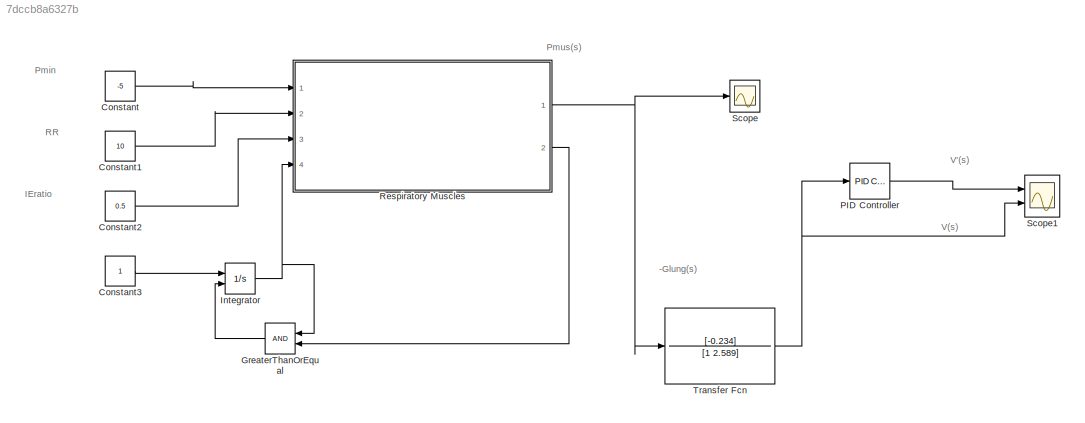
MODEL slx_7dccb8a6327b
KIND model
CONFIG AbsTol = auto
CONFIG EnableMultiTasking = off
CONFIG FixedStep = auto
CONFIG MaxStep = auto
CONFIG MinStep = auto
CONFIG RelTol = 1e-3
CONFIG SampleTimeConstraint = Unconstrained
CONFIG Solver = VariableStepAuto
CONFIG SolverName = VariableStepAuto
CONFIG StartTime = 0.0
CONFIG StopTime = 60.0
BLOCK [Constant] Constant
  Value = -5
BLOCK [Constant] Constant1
  Value = 10
BLOCK [Constant] Constant2
  Value = 0.5
BLOCK [Constant] Constant3
BLOCK [RelationalOperator] GreaterThanOrEqual
  InputSameDT = off
  OutDataTypeStr = boolean
  Ports = [2, 1]
  RndMeth = Simplest
BLOCK [Integrator] Integrator
  ExternalReset = rising
  Ports = [2, 1]
BLOCK [Reference] PID Controller  REF=simulink/Continuous/PID Controller
  Ports = [1, 1]
  SourceBlock = simulink/Continuous/PID Controller
  SourceProductBaseCode = SL
  SourceType = PID 1dof
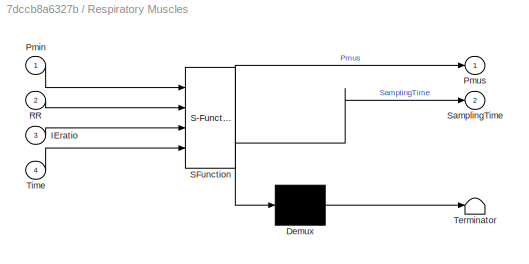
BLOCK [SubSystem] Respiratory Muscles
  ErrorFcn = Stateflow.Translate.translate
  PermitHierarchicalResolution = ExplicitOnly
  Ports = [4, 2]
  RequestExecContextInheritance = off
  SFBlockType = MATLAB Function
  TreatAsAtomicUnit = on
BLOCK [Demux] Respiratory Muscles/ Demux 
  DisplayOption = bar
  Outputs = 1
  Ports = [1, 1]
BLOCK [S-Function] Respiratory Muscles/ SFunction 
  EnableBusSupport = on
  FunctionName = sf_sfun
  PortCounts = [4 3]
  Ports = [4, 3]
  SFcnIsStateOwnerBlock = off
  SFunctionDeploymentMode = off
  Tag = Stateflow S-Function Final_Q1_F_end 2
BLOCK [Terminator] Respiratory Muscles/ Terminator 
BLOCK [Inport] Respiratory Muscles/IEratio
  IconDisplay = Port number
  Port = 3
BLOCK [Inport] Respiratory Muscles/Pmin
  IconDisplay = Port number
BLOCK [Outport] Respiratory Muscles/Pmus
  IconDisplay = Port number
  VectorParamsAs1DForOutWhenUnconnected = on
BLOCK [Inport] Respiratory Muscles/RR
  IconDisplay = Port number
  Port = 2
BLOCK [Outport] Respiratory Muscles/SamplingTime
  IconDisplay = Port number
  Port = 2
  VectorParamsAs1DForOutWhenUnconnected = on
BLOCK [Inport] Respiratory Muscles/Time
  IconDisplay = Port number
  Port = 4
BLOCK [Scope] Scope
  Floating = off
  NumInputPorts = 1
  Ports = [1]
  ScopeSpecificationString = Simulink.scopes.TimeScopeBlockCfg('CurrentConfiguration', extmgr.ConfigurationSet(extmgr.Configuration('Core','General UI',true,'FigureColor',[1 1 1]),extmgr.Configuration('Core','Source UI',true),extmgr.Configuration('Sources','WiredSimulink',true),extmgr.Configuration('Visuals','Time Domain',true,'SerializedDisplays',{struct('MinYLimReal','-6','MaxYLimReal','1','YLabelReal','','MinYLimMag','0.00...<+1536ch>
BLOCK [Scope] Scope1
  Floating = off
  NumInputPorts = 2
  Ports = [2]
  ScopeSpecificationString = Simulink.scopes.TimeScopeBlockCfg('CurrentConfiguration', extmgr.ConfigurationSet(extmgr.Configuration('Core','General UI',true,'FigureColor',[1 1 1]),extmgr.Configuration('Core','Source UI',true),extmgr.Configuration('Sources','WiredSimulink',true,'DataLoggingVariableName','ScopeData1'),extmgr.Configuration('Visuals','Time Domain',true,'SerializedDisplays',{struct('MinYLimReal','-0.5','MaxYLimRea...<+2340ch>
BLOCK [TransferFcn] Transfer Fcn
  Denominator = [1 2.589]
  Numerator = [-0.234]
ANNOTATION (root): -Glung(s)
ANNOTATION (root): IEratio
ANNOTATION (root): Pmin
ANNOTATION (root): Pmus(s)
ANNOTATION (root): RR
ANNOTATION (root): V'(s)
ANNOTATION (root): V(s)
LINE Constant1:1 -> Respiratory Muscles:2
LINE Constant2:1 -> Respiratory Muscles:3
LINE Constant3:1 -> Integrator:1
LINE Constant:1 -> Respiratory Muscles:1
LINE GreaterThanOrEqual:1 -> Integrator:2
NET Integrator:1 -> GreaterThanOrEqual:1, Respiratory Muscles:4
LINE PID Controller:1 -> Scope1:1
NET Respiratory Muscles:1 -> Scope:1, Transfer Fcn:1
LINE Respiratory Muscles:2 -> GreaterThanOrEqual:2
NET Transfer Fcn:1 -> PID Controller:1, Scope1:2
note: NET lines group one-source signal fan-out (src -> all destinations, sorted); 1:1 wires keep LINE
CHART Respiratory Muscles states=1 transitions=1
  STATE_LABEL 'eML_blk_kernel()'
  STATE_LABEL 'SCRIPT:\nfunction [Pmus,SamplingTime] = fcn(Pmin,RR ,IEratio, Time)\nT = 60/RR;\nSamplingTime = T; \nTE = T/(1 + IEratio);\nTI = T - TE;\nTau = TE / 10;\n\nif (Time <= TI)\n\n    Pmus = Pmin*(1/(TI*TE))*(T*Time -Time^2)\n    \n\nelse \n    \n    Pmus = (Pmin/(1 - exp((-TE/Tau))))*(exp(((Time - TI)/(-Tau)))-exp(((-TE)/(Tau))))\nend\n\n\nend\n\n'
